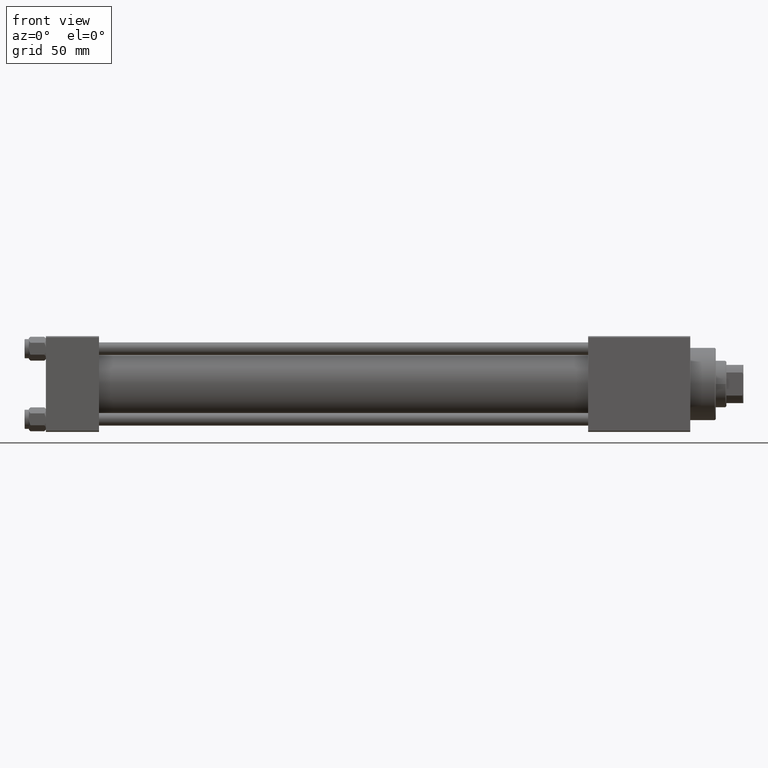
[diagram: clean part render]
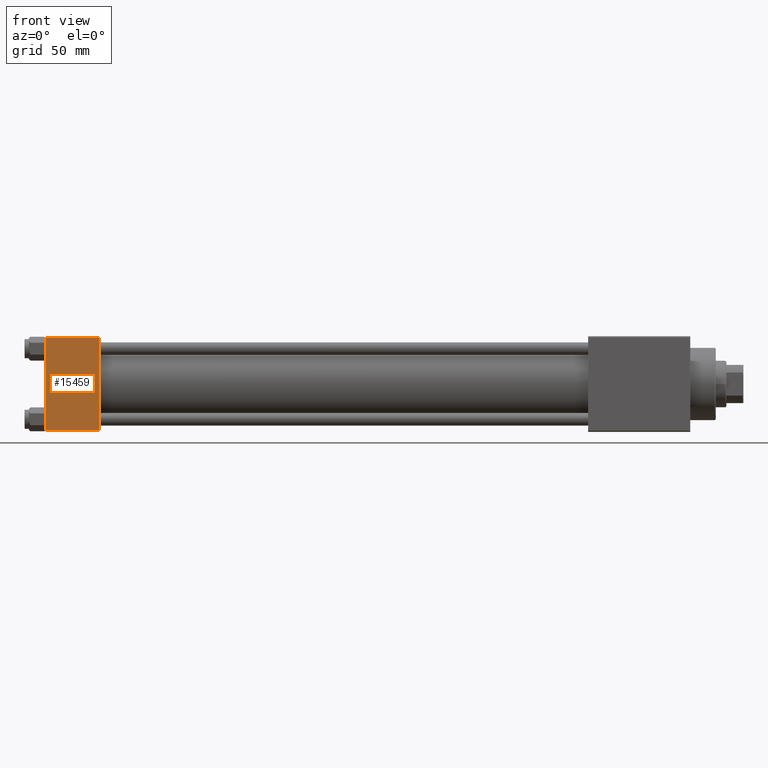
[diagram: same view with one face highlighted and labeled with its STEP entity id]
A machine part, front view. The second image highlights one B-rep face of the part: STEP entity #15459.
In plain terms, the highlighted planar face has unit normal (0, 1, 0).
Its self-contained STEP definition (entity closure, byte-faithful):
#825 = CARTESIAN_POINT ( 'NONE',  ( 25.00000000000000000, -22.50000000000000000, 22.50000000000000000 ) ) ;
#1733 = LINE ( 'NONE', #24666, #9108 ) ;
#2683 = VERTEX_POINT ( 'NONE', #24990 ) ;
#3061 = EDGE_CURVE ( 'NONE', #2683, #42901, #38826, .T. ) ;
#3648 = DIRECTION ( 'NONE',  ( -0.000000000000000000, 1.000000000000000000, 0.000000000000000000 ) ) ;
#3685 = ORIENTED_EDGE ( 'NONE', *, *, #3061, .T. ) ;
#9108 = VECTOR ( 'NONE', #12945, 1000.000000000000000 ) ;
#12870 = LINE ( 'NONE', #38875, #33674 ) ;
#12945 = DIRECTION ( 'NONE',  ( 1.000000000000000000, 0.000000000000000000, 0.000000000000000000 ) ) ;
#13999 = VERTEX_POINT ( 'NONE', #29862 ) ;
#15362 = FACE_OUTER_BOUND ( 'NONE', #44719, .T. ) ;
#15459 = ADVANCED_FACE ( 'NONE', ( #15362 ), #38558, .F. ) ;
#15947 = CARTESIAN_POINT ( 'NONE',  ( 0.000000000000000000, -22.50000000000000000, -21.99999999999997158 ) ) ;
#16199 = VECTOR ( 'NONE', #16863, 1000.000000000000000 ) ;
#16863 = DIRECTION ( 'NONE',  ( 0.000000000000000000, 0.000000000000000000, -1.000000000000000000 ) ) ;
#18730 = CARTESIAN_POINT ( 'NONE',  ( 0.000000000000000000, -22.50000000000000000, 22.50000000000000000 ) ) ;
#19564 = AXIS2_PLACEMENT_3D ( 'NONE', #34489, #3648, #30668 ) ;
#20521 = DIRECTION ( 'NONE',  ( -1.000000000000000000, 0.000000000000000000, 0.000000000000000000 ) ) ;
#22235 = ORIENTED_EDGE ( 'NONE', *, *, #39209, .T. ) ;
#23198 = CARTESIAN_POINT ( 'NONE',  ( 25.00000000000000000, -22.50000000000000000, -21.99999999999997158 ) ) ;
#24047 = EDGE_CURVE ( 'NONE', #13999, #33269, #35983, .T. ) ;
#24666 = CARTESIAN_POINT ( 'NONE',  ( 25.00000000000000000, -22.50000000000000000, -21.99999999999998579 ) ) ;
#24990 = CARTESIAN_POINT ( 'NONE',  ( 0.000000000000000000, -22.50000000000000000, 22.00000000000000000 ) ) ;
#29862 = CARTESIAN_POINT ( 'NONE',  ( 25.00000000000000000, -22.50000000000000000, 22.00000000000000000 ) ) ;
#30668 = DIRECTION ( 'NONE',  ( 0.000000000000000000, -0.000000000000000000, 1.000000000000000000 ) ) ;
#31218 = EDGE_CURVE ( 'NONE', #42901, #33269, #1733, .T. ) ;
#33269 = VERTEX_POINT ( 'NONE', #23198 ) ;
#33674 = VECTOR ( 'NONE', #20521, 1000.000000000000000 ) ;
#34489 = CARTESIAN_POINT ( 'NONE',  ( 25.00000000000000000, -22.50000000000000000, 22.50000000000000000 ) ) ;
#35983 = LINE ( 'NONE', #825, #16199 ) ;
#38235 = ORIENTED_EDGE ( 'NONE', *, *, #24047, .F. ) ;
#38558 = PLANE ( 'NONE',  #19564 ) ;
#38826 = LINE ( 'NONE', #18730, #50145 ) ;
#38875 = CARTESIAN_POINT ( 'NONE',  ( 25.00000000000000000, -22.50000000000000000, 22.00000000000000000 ) ) ;
#39209 = EDGE_CURVE ( 'NONE', #13999, #2683, #12870, .T. ) ;
#40835 = ORIENTED_EDGE ( 'NONE', *, *, #31218, .T. ) ;
#42901 = VERTEX_POINT ( 'NONE', #15947 ) ;
#44719 = EDGE_LOOP ( 'NONE', ( #3685, #40835, #38235, #22235 ) ) ;
#50017 = DIRECTION ( 'NONE',  ( 0.000000000000000000, 0.000000000000000000, -1.000000000000000000 ) ) ;
#50145 = VECTOR ( 'NONE', #50017, 1000.000000000000000 ) ;